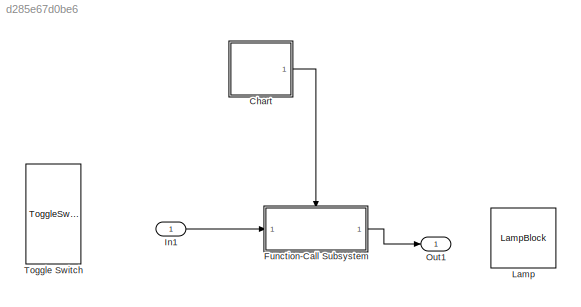
MODEL slx_d285e67d0be6
KIND model
CONFIG AbsTol = auto
CONFIG EnableMultiTasking = off
CONFIG FixedStep = auto
CONFIG MaxStep = auto
CONFIG MinStep = auto
CONFIG RelTol = 1e-3
CONFIG SampleTimeConstraint = Unconstrained
CONFIG SolverName = VariableStepAuto
CONFIG StartTime = 0.0
CONFIG StopTime = 10.0
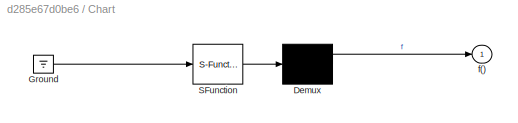
BLOCK [SubSystem] Chart
  ErrorFcn = Stateflow.Translate.translate
  PermitHierarchicalResolution = ExplicitOnly
  Ports = [0, 1]
  RequestExecContextInheritance = off
  SFBlockType = Chart
  TreatAsAtomicUnit = on
BLOCK [Demux] Chart/ Demux 
  Outputs = 1
  Ports = [1, 1]
BLOCK [Ground] Chart/ Ground 
BLOCK [S-Function] Chart/ SFunction 
  EnableBusSupport = on
  FunctionName = sf_sfun
  PortCounts = [1 1]
  Ports = [1, 1]
  SFcnIsStateOwnerBlock = off
  SFunctionDeploymentMode = off
  Tag = Stateflow S-Function 3
BLOCK [Outport] Chart/f()
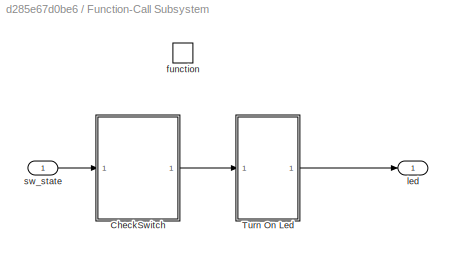
BLOCK [SubSystem] Function-Call Subsystem
  Ports = [1, 1, 0, 1]
  RequestExecContextInheritance = off
  TreatAsAtomicUnit = on
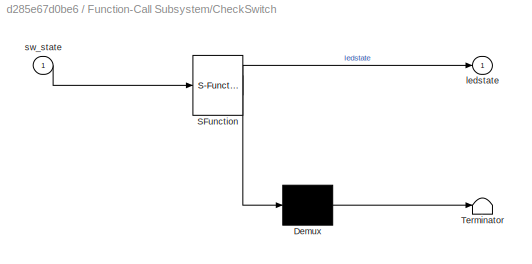
BLOCK [SubSystem] Function-Call Subsystem/CheckSwitch
  ErrorFcn = Stateflow.Translate.translate
  PermitHierarchicalResolution = ExplicitOnly
  Ports = [1, 1]
  RequestExecContextInheritance = off
  SFBlockType = Chart
  TreatAsAtomicUnit = on
BLOCK [Demux] Function-Call Subsystem/CheckSwitch/ Demux 
  Outputs = 1
  Ports = [1, 1]
BLOCK [S-Function] Function-Call Subsystem/CheckSwitch/ SFunction 
  EnableBusSupport = on
  FunctionName = sf_sfun
  PortCounts = [1 2]
  Ports = [1, 2]
  SFcnIsStateOwnerBlock = off
  SFunctionDeploymentMode = off
  Tag = Stateflow S-Function 1
BLOCK [Terminator] Function-Call Subsystem/CheckSwitch/ Terminator 
BLOCK [Outport] Function-Call Subsystem/CheckSwitch/ledstate
BLOCK [Inport] Function-Call Subsystem/CheckSwitch/sw_state
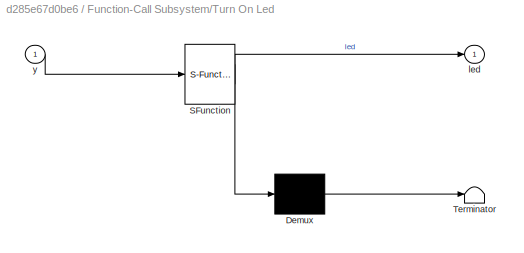
BLOCK [SubSystem] Function-Call Subsystem/Turn On Led
  ErrorFcn = Stateflow.Translate.translate
  PermitHierarchicalResolution = ExplicitOnly
  Ports = [1, 1]
  RequestExecContextInheritance = off
  SFBlockType = Chart
  TreatAsAtomicUnit = on
BLOCK [Demux] Function-Call Subsystem/Turn On Led/ Demux 
  Outputs = 1
  Ports = [1, 1]
BLOCK [S-Function] Function-Call Subsystem/Turn On Led/ SFunction 
  EnableBusSupport = on
  FunctionName = sf_sfun
  PortCounts = [1 2]
  Ports = [1, 2]
  SFcnIsStateOwnerBlock = off
  SFunctionDeploymentMode = off
  Tag = Stateflow S-Function 2
BLOCK [Terminator] Function-Call Subsystem/Turn On Led/ Terminator 
BLOCK [Outport] Function-Call Subsystem/Turn On Led/led
BLOCK [Inport] Function-Call Subsystem/Turn On Led/y
BLOCK [TriggerPort] Function-Call Subsystem/function
  Ports = []
  StatesWhenEnabling = held
  TriggerType = function-call
  VariantControl = Variant
BLOCK [Outport] Function-Call Subsystem/led
BLOCK [Inport] Function-Call Subsystem/sw_state
BLOCK [Inport] In1
BLOCK [LampBlock] Lamp
BLOCK [Outport] Out1
BLOCK [ToggleSwitchBlock] Toggle Switch
LINE Chart:1 -> Function-Call Subsystem:trigger
LINE Function-Call Subsystem/CheckSwitch:1 -> Function-Call Subsystem/Turn On Led:1
LINE Function-Call Subsystem/Turn On Led:1 -> Function-Call Subsystem/led:1
LINE Function-Call Subsystem/sw_state:1 -> Function-Call Subsystem/CheckSwitch:1
LINE Function-Call Subsystem:1 -> Out1:1
LINE In1:1 -> Function-Call Subsystem:1
CHART Function-Call
Subsystem/CheckSwitch states=0 transitions=6
CHART Function-Call
Subsystem/Turn On Led states=0 transitions=6
CHART Chart states=1 transitions=2
  STATE_LABEL 'state1\nen:\ndu:\nex:'
CHART  states=0 transitions=0
CHART  states=0 transitions=0
CHART  states=0 transitions=0
